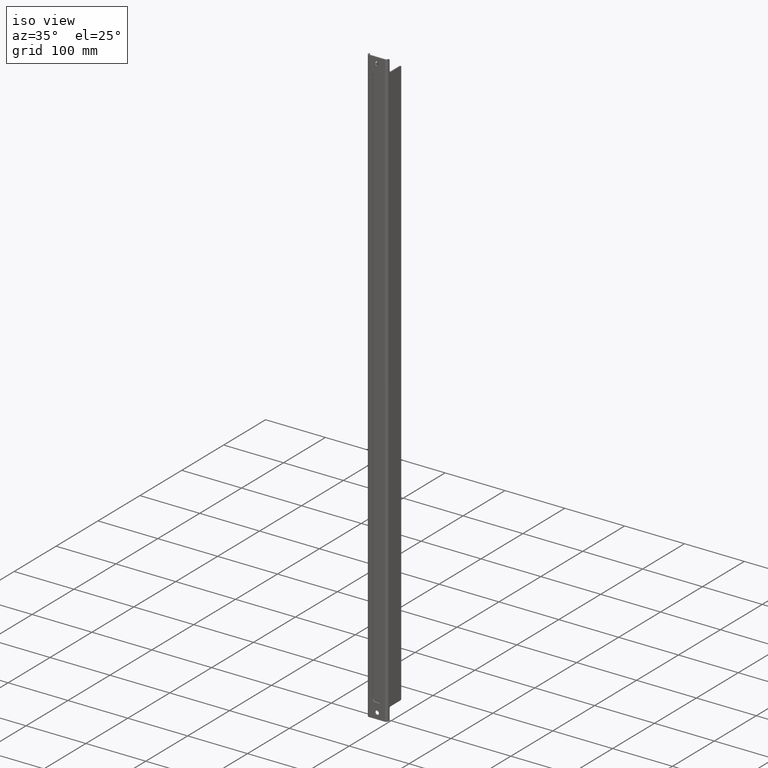
[diagram: clean part render]
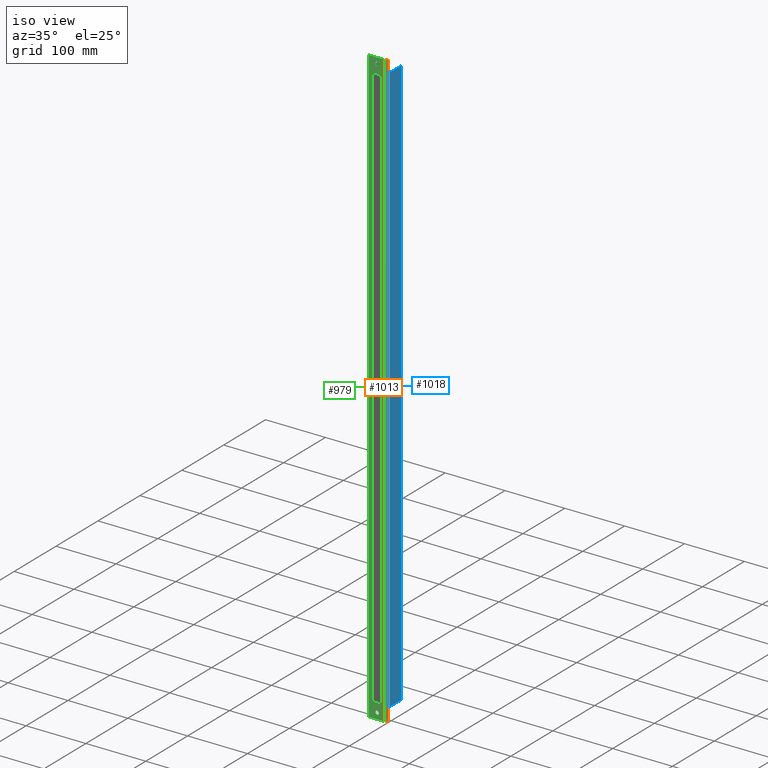
[diagram: same view with three faces highlighted in distinct colors, each labeled with its STEP entity id]
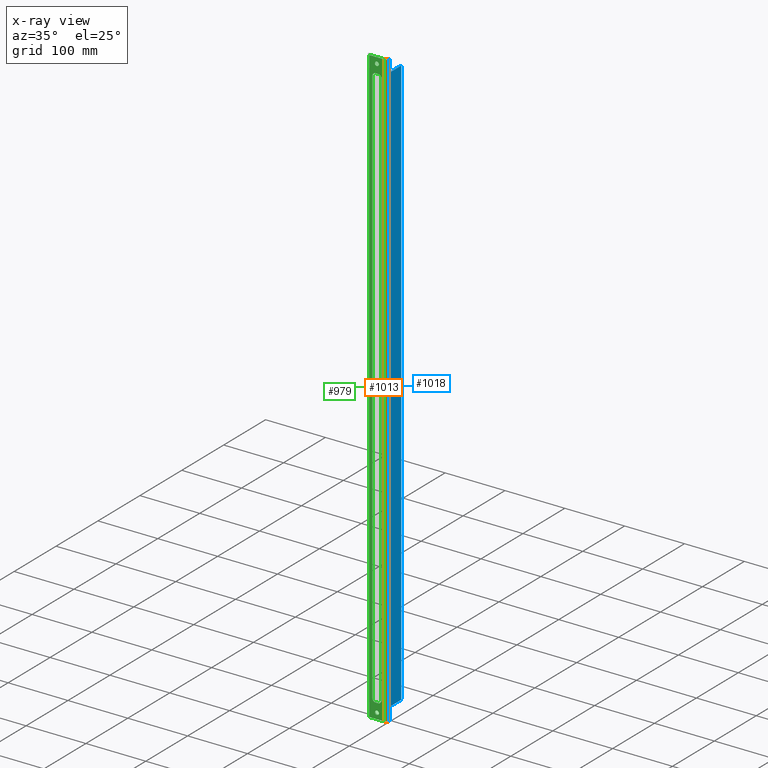
[diagram: x-ray of the same camera — body ghosted, the three highlighted faces saturated]
A machine part, iso view with three faces highlighted in distinct colors.
The next image is the same camera in x-ray (body ghosted, the three faces saturated) — at least one of them is partly hidden behind the body in this view.
Their STEP definitions:

[orange] entity #1013 — the highlighted cylindrical surface (edge-blend (fillet) strip) has radius 4 mm, axis along (0, 0, -1).
#33=LINE('',#1535,#121);
#90=LINE('',#1720,#178);
#121=VECTOR('',#1213,1000.);
#178=VECTOR('',#1410,1000.);
#215=CYLINDRICAL_SURFACE('',#1131,3.99999999999999);
#428=ORIENTED_EDGE('',*,*,#630,.T.);
#429=ORIENTED_EDGE('',*,*,#539,.T.);
#430=ORIENTED_EDGE('',*,*,#631,.F.);
#431=ORIENTED_EDGE('',*,*,#632,.F.);
#539=EDGE_CURVE('',#684,#682,#33,.T.);
#630=EDGE_CURVE('',#740,#684,#800,.T.);
#631=EDGE_CURVE('',#741,#682,#801,.T.);
#632=EDGE_CURVE('',#740,#741,#90,.T.);
#682=VERTEX_POINT('',#1533);
#684=VERTEX_POINT('',#1536);
#740=VERTEX_POINT('',#1717);
#741=VERTEX_POINT('',#1719);
#800=CIRCLE('',#1132,3.99999999999999);
#801=CIRCLE('',#1133,3.99999999999999);
#859=EDGE_LOOP('',(#428,#429,#430,#431));
#927=FACE_BOUND('',#859,.T.);
#1013=ADVANCED_FACE('',(#927),#215,.T.);
#1131=AXIS2_PLACEMENT_3D('',#1715,#1404,#1405);
#1132=AXIS2_PLACEMENT_3D('',#1716,#1406,#1407);
#1133=AXIS2_PLACEMENT_3D('',#1718,#1408,#1409);
#1213=DIRECTION('',(-3.43749899352818E-17,1.66533453693773E-16,-1.));
#1404=DIRECTION('',(8.93686180177302E-17,1.66533453693773E-16,-1.));
#1405=DIRECTION('',(4.06163832661068E-16,1.,1.66533453693773E-16));
#1406=DIRECTION('',(8.93686180177302E-17,1.66533453693773E-16,-1.));
#1407=DIRECTION('',(4.06163832661068E-16,1.,1.66533453693773E-16));
#1408=DIRECTION('',(8.93686180177302E-17,1.66533453693773E-16,-1.));
#1409=DIRECTION('',(4.06163832661068E-16,1.,1.66533453693773E-16));
#1410=DIRECTION('',(8.93686180177302E-17,1.31838984174237E-16,-1.));
#1533=CARTESIAN_POINT('',(13.0000000000001,-34.0130367319018,-500.));
#1535=CARTESIAN_POINT('',(13.0000000000001,-34.0130367319026,375.));
#1536=CARTESIAN_POINT('',(13.,-34.0130367319026,500.));
#1715=CARTESIAN_POINT('',(13.0000000000001,-30.0130367319025,-375.));
#1716=CARTESIAN_POINT('',(13.,-30.0130367319026,500.));
#1717=CARTESIAN_POINT('',(17.,-30.0130367319026,500.));
#1718=CARTESIAN_POINT('',(13.0000000000001,-30.0130367319018,-500.));
#1719=CARTESIAN_POINT('',(17.0000000000001,-30.0130367319022,-500.));
#1720=CARTESIAN_POINT('',(17.,-30.0130367319026,-1.92994200509913E-15));

[blue] entity #1018 — the highlighted planar face has unit normal (1, -0, 0).
#90=LINE('',#1720,#178);
#95=LINE('',#1734,#183);
#96=LINE('',#1738,#184);
#97=LINE('',#1742,#185);
#98=LINE('',#1746,#186);
#99=LINE('',#1750,#187);
#178=VECTOR('',#1410,1000.);
#183=VECTOR('',#1429,1000.);
#184=VECTOR('',#1432,1000.);
#185=VECTOR('',#1435,1000.);
#186=VECTOR('',#1438,1000.);
#187=VECTOR('',#1441,1000.);
#456=ORIENTED_EDGE('',*,*,#632,.T.);
#457=ORIENTED_EDGE('',*,*,#635,.T.);
#458=ORIENTED_EDGE('',*,*,#639,.T.);
#459=ORIENTED_EDGE('',*,*,#640,.T.);
#460=ORIENTED_EDGE('',*,*,#641,.T.);
#461=ORIENTED_EDGE('',*,*,#642,.T.);
#462=ORIENTED_EDGE('',*,*,#643,.F.);
#463=ORIENTED_EDGE('',*,*,#644,.T.);
#464=ORIENTED_EDGE('',*,*,#645,.T.);
#465=ORIENTED_EDGE('',*,*,#646,.T.);
#466=ORIENTED_EDGE('',*,*,#647,.T.);
#467=ORIENTED_EDGE('',*,*,#637,.T.);
#632=EDGE_CURVE('',#740,#741,#90,.T.);
#635=EDGE_CURVE('',#741,#742,#802,.T.);
#637=EDGE_CURVE('',#743,#740,#803,.T.);
#639=EDGE_CURVE('',#742,#744,#95,.T.);
#640=EDGE_CURVE('',#744,#745,#804,.T.);
#641=EDGE_CURVE('',#745,#746,#96,.T.);
#642=EDGE_CURVE('',#746,#747,#805,.T.);
#643=EDGE_CURVE('',#748,#747,#97,.T.);
#644=EDGE_CURVE('',#748,#749,#806,.T.);
#645=EDGE_CURVE('',#749,#750,#98,.T.);
#646=EDGE_CURVE('',#750,#751,#807,.T.);
#647=EDGE_CURVE('',#751,#743,#99,.T.);
#740=VERTEX_POINT('',#1717);
#741=VERTEX_POINT('',#1719);
#742=VERTEX_POINT('',#1727);
#743=VERTEX_POINT('',#1731);
#744=VERTEX_POINT('',#1735);
#745=VERTEX_POINT('',#1737);
#746=VERTEX_POINT('',#1739);
#747=VERTEX_POINT('',#1741);
#748=VERTEX_POINT('',#1743);
#749=VERTEX_POINT('',#1745);
#750=VERTEX_POINT('',#1747);
#751=VERTEX_POINT('',#1749);
#802=CIRCLE('',#1137,2.);
#803=CIRCLE('',#1139,2.);
#804=CIRCLE('',#1141,2.);
#805=CIRCLE('',#1142,2.);
#806=CIRCLE('',#1143,2.);
#807=CIRCLE('',#1144,2.);
#864=EDGE_LOOP('',(#456,#457,#458,#459,#460,#461,#462,#463,#464,#465,#466,
#467));
#932=FACE_BOUND('',#864,.T.);
#967=PLANE('',#1140);
#1018=ADVANCED_FACE('',(#932),#967,.T.);
#1137=AXIS2_PLACEMENT_3D('',#1726,#1419,#1420);
#1139=AXIS2_PLACEMENT_3D('',#1730,#1424,#1425);
#1140=AXIS2_PLACEMENT_3D('',#1733,#1427,#1428);
#1141=AXIS2_PLACEMENT_3D('',#1736,#1430,#1431);
#1142=AXIS2_PLACEMENT_3D('',#1740,#1433,#1434);
#1143=AXIS2_PLACEMENT_3D('',#1744,#1436,#1437);
#1144=AXIS2_PLACEMENT_3D('',#1748,#1439,#1440);
#1410=DIRECTION('',(8.93686180177302E-17,1.31838984174237E-16,-1.));
#1419=DIRECTION('',(1.,-4.06163832661068E-16,8.93686180177302E-17));
#1420=DIRECTION('',(8.93686180177302E-17,1.66533453693773E-16,-1.));
#1424=DIRECTION('',(1.,-4.06163832661068E-16,8.93686180177302E-17));
#1425=DIRECTION('',(8.93686180177302E-17,1.66533453693773E-16,-1.));
#1427=DIRECTION('',(1.,-4.06163832661068E-16,8.93686180177302E-17));
#1428=DIRECTION('',(8.93686180177302E-17,1.66533453693773E-16,-1.));
#1429=DIRECTION('',(-8.93686180177302E-17,-1.66533453693773E-16,1.));
#1430=DIRECTION('',(-1.,4.06163832661068E-16,-8.93686180177302E-17));
#1431=DIRECTION('',(8.93686180177302E-17,1.66533453693773E-16,-1.));
#1432=DIRECTION('',(4.06163832661068E-16,1.,1.66533453693773E-16));
#1433=DIRECTION('',(1.,-4.06163832661068E-16,8.93686180177302E-17));
#1434=DIRECTION('',(8.93686180177302E-17,1.66533453693773E-16,-1.));
#1435=DIRECTION('',(8.93686180177302E-17,1.66533453693773E-16,-1.));
#1436=DIRECTION('',(1.,-4.06163832661068E-16,8.93686180177302E-17));
#1437=DIRECTION('',(8.93686180177302E-17,1.66533453693773E-16,-1.));
#1438=DIRECTION('',(-4.06163832661068E-16,-1.,-1.66533453693773E-16));
#1439=DIRECTION('',(-1.,4.06163832661068E-16,-8.93686180177302E-17));
#1440=DIRECTION('',(8.93686180177302E-17,1.66533453693773E-16,-1.));
#1441=DIRECTION('',(-8.93686180177302E-17,-4.2624633981144E-17,1.));
#1717=CARTESIAN_POINT('',(17.,-30.0130367319026,500.));
#1719=CARTESIAN_POINT('',(17.0000000000001,-30.0130367319022,-500.));
#1720=CARTESIAN_POINT('',(17.,-30.0130367319026,-1.92994200509913E-15));
#1726=CARTESIAN_POINT('',(17.0000000000002,-30.0130367319018,-498.));
#1727=CARTESIAN_POINT('',(17.0000000000002,-28.0130367319018,-498.));
#1730=CARTESIAN_POINT('',(17.,-30.0130367319026,498.));
#1731=CARTESIAN_POINT('',(17.,-28.0130367319026,498.));
#1733=CARTESIAN_POINT('',(17.,-32.5130367319026,-2.25953946553472E-15));
#1734=CARTESIAN_POINT('',(17.0000000000001,-28.0130367319025,-250.));
#1735=CARTESIAN_POINT('',(17.0000000000001,-28.0130367319025,-481.));
#1736=CARTESIAN_POINT('',(17.0000000000002,-26.0130367319018,-481.));
#1737=CARTESIAN_POINT('',(17.0000000000002,-26.0130367319018,-479.));
#1738=CARTESIAN_POINT('',(17.0000000000002,-9.51303673190181,-479.));
#1739=CARTESIAN_POINT('',(17.,-2.01303673190192,-479.));
#1740=CARTESIAN_POINT('',(17.,-2.01303673190192,-477.));
#1741=CARTESIAN_POINT('',(16.9999999999999,-0.0130367319025937,-477.));
#1742=CARTESIAN_POINT('',(16.9999999999999,-0.0130367319026107,-375.));
#1743=CARTESIAN_POINT('',(16.9999999999998,-0.0130367319026905,477.));
#1744=CARTESIAN_POINT('',(16.9999999999998,-2.01303673190269,477.));
#1745=CARTESIAN_POINT('',(17.,-2.01303673190269,479.));
#1746=CARTESIAN_POINT('',(17.,-9.51303673190258,479.));
#1747=CARTESIAN_POINT('',(17.,-26.0130367319026,479.));
#1748=CARTESIAN_POINT('',(17.,-26.0130367319026,481.));
#1749=CARTESIAN_POINT('',(17.,-28.0130367319026,481.));
#1750=CARTESIAN_POINT('',(17.,-28.0130367319026,625.));

[green] entity #979 — the highlighted planar face has unit normal (0, 1, 0).
#28=LINE('',#1516,#116);
#29=LINE('',#1521,#117);
#30=LINE('',#1525,#118);
#31=LINE('',#1529,#119);
#32=LINE('',#1532,#120);
#33=LINE('',#1535,#121);
#34=LINE('',#1537,#122);
#35=LINE('',#1539,#123);
#116=VECTOR('',#1200,1000.);
#117=VECTOR('',#1203,1000.);
#118=VECTOR('',#1206,1000.);
#119=VECTOR('',#1209,1000.);
#120=VECTOR('',#1212,1000.);
#121=VECTOR('',#1213,1000.);
#122=VECTOR('',#1214,1000.);
#123=VECTOR('',#1215,1000.);
#243=ORIENTED_EDGE('',*,*,#529,.T.);
#244=ORIENTED_EDGE('',*,*,#530,.F.);
#245=ORIENTED_EDGE('',*,*,#531,.T.);
#246=ORIENTED_EDGE('',*,*,#532,.F.);
#247=ORIENTED_EDGE('',*,*,#533,.T.);
#248=ORIENTED_EDGE('',*,*,#534,.F.);
#249=ORIENTED_EDGE('',*,*,#535,.T.);
#250=ORIENTED_EDGE('',*,*,#536,.F.);
#251=ORIENTED_EDGE('',*,*,#537,.T.);
#252=ORIENTED_EDGE('',*,*,#538,.F.);
#253=ORIENTED_EDGE('',*,*,#539,.F.);
#254=ORIENTED_EDGE('',*,*,#540,.F.);
#255=ORIENTED_EDGE('',*,*,#541,.F.);
#256=ORIENTED_EDGE('',*,*,#542,.T.);
#529=EDGE_CURVE('',#673,#673,#761,.T.);
#530=EDGE_CURVE('',#674,#675,#28,.T.);
#531=EDGE_CURVE('',#674,#676,#762,.T.);
#532=EDGE_CURVE('',#677,#676,#29,.T.);
#533=EDGE_CURVE('',#677,#678,#763,.T.);
#534=EDGE_CURVE('',#679,#678,#30,.T.);
#535=EDGE_CURVE('',#679,#680,#764,.T.);
#536=EDGE_CURVE('',#681,#680,#31,.T.);
#537=EDGE_CURVE('',#681,#675,#765,.T.);
#538=EDGE_CURVE('',#682,#683,#32,.T.);
#539=EDGE_CURVE('',#684,#682,#33,.T.);
#540=EDGE_CURVE('',#685,#684,#34,.T.);
#541=EDGE_CURVE('',#683,#685,#35,.T.);
#542=EDGE_CURVE('',#686,#686,#766,.T.);
#673=VERTEX_POINT('',#1515);
#674=VERTEX_POINT('',#1517);
#675=VERTEX_POINT('',#1518);
#676=VERTEX_POINT('',#1520);
#677=VERTEX_POINT('',#1522);
#678=VERTEX_POINT('',#1524);
#679=VERTEX_POINT('',#1526);
#680=VERTEX_POINT('',#1528);
#681=VERTEX_POINT('',#1530);
#682=VERTEX_POINT('',#1533);
#683=VERTEX_POINT('',#1534);
#684=VERTEX_POINT('',#1536);
#685=VERTEX_POINT('',#1538);
#686=VERTEX_POINT('',#1541);
#761=CIRCLE('',#1059,3.29999999999997);
#762=CIRCLE('',#1060,5.);
#763=CIRCLE('',#1061,5.);
#764=CIRCLE('',#1062,5.);
#765=CIRCLE('',#1063,5.);
#766=CIRCLE('',#1064,3.29999999999997);
#817=EDGE_LOOP('',(#243));
#818=EDGE_LOOP('',(#244,#245,#246,#247,#248,#249,#250,#251));
#819=EDGE_LOOP('',(#252,#253,#254,#255));
#820=EDGE_LOOP('',(#256));
#885=FACE_BOUND('',#817,.T.);
#886=FACE_BOUND('',#818,.T.);
#887=FACE_BOUND('',#819,.T.);
#888=FACE_BOUND('',#820,.T.);
#948=PLANE('',#1058);
#979=ADVANCED_FACE('',(#885,#886,#887,#888),#948,.F.);
#1058=AXIS2_PLACEMENT_3D('',#1513,#1196,#1197);
#1059=AXIS2_PLACEMENT_3D('',#1514,#1198,#1199);
#1060=AXIS2_PLACEMENT_3D('',#1519,#1201,#1202);
#1061=AXIS2_PLACEMENT_3D('',#1523,#1204,#1205);
#1062=AXIS2_PLACEMENT_3D('',#1527,#1207,#1208);
#1063=AXIS2_PLACEMENT_3D('',#1531,#1210,#1211);
#1064=AXIS2_PLACEMENT_3D('',#1540,#1216,#1217);
#1196=DIRECTION('',(4.06163832661068E-16,1.,1.66533453693773E-16));
#1197=DIRECTION('',(-1.,4.06163832661068E-16,-8.93686180177302E-17));
#1198=DIRECTION('',(4.06163832661068E-16,1.,1.66533453693773E-16));
#1199=DIRECTION('',(-1.,4.06163832661068E-16,0.));
#1200=DIRECTION('',(-8.93686180177302E-17,-1.66533453693773E-16,1.));
#1201=DIRECTION('',(4.06163832661068E-16,1.,1.66533453693773E-16));
#1202=DIRECTION('',(-1.,4.06163832661068E-16,-8.93686180177302E-17));
#1203=DIRECTION('',(1.,-4.06163832661068E-16,8.93686180177302E-17));
#1204=DIRECTION('',(4.06163832661068E-16,1.,1.66533453693773E-16));
#1205=DIRECTION('',(-1.,4.06163832661068E-16,-8.93686180177302E-17));
#1206=DIRECTION('',(8.93686180177302E-17,1.66533453693773E-16,-1.));
#1207=DIRECTION('',(4.06163832661068E-16,1.,1.66533453693773E-16));
#1208=DIRECTION('',(-1.,4.06163832661068E-16,-8.93686180177302E-17));
#1209=DIRECTION('',(-1.,4.06163832661068E-16,-8.93686180177302E-17));
#1210=DIRECTION('',(4.06163832661068E-16,1.,1.66533453693773E-16));
#1211=DIRECTION('',(-1.,4.06163832661068E-16,-8.93686180177302E-17));
#1212=DIRECTION('',(-1.,4.06163832661068E-16,-8.93686180177302E-17));
#1213=DIRECTION('',(-3.43749899352818E-17,1.66533453693773E-16,-1.));
#1214=DIRECTION('',(1.,-4.06163832661068E-16,8.93686180177302E-17));
#1215=DIRECTION('',(3.32185076179637E-17,-1.66533453693773E-16,1.));
#1216=DIRECTION('',(4.06163832661068E-16,1.,1.66533453693773E-16));
#1217=DIRECTION('',(-1.,4.06163832661068E-16,0.));
#1513=CARTESIAN_POINT('',(-1.03104538151908E-14,-34.0130367319026,-3.71924713249427E-15));
#1514=CARTESIAN_POINT('',(-1.74730665500947E-14,-34.0130367319026,490.));
#1515=CARTESIAN_POINT('',(-3.29999999999999,-34.0130367319026,490.));
#1516=CARTESIAN_POINT('',(7.50000000000001,-34.0130367319025,-350.));
#1517=CARTESIAN_POINT('',(7.50000000000002,-34.0130367319025,-470.));
#1518=CARTESIAN_POINT('',(7.49999999999994,-34.0130367319026,470.));
#1519=CARTESIAN_POINT('',(2.50000000000007,-34.0130367319018,-470.));
#1520=CARTESIAN_POINT('',(2.50000000000007,-34.0130367319018,-475.));
#1521=CARTESIAN_POINT('',(-5.99999999999993,-34.0130367319018,-475.));
#1522=CARTESIAN_POINT('',(-2.49999999999997,-34.0130367319018,-475.));
#1523=CARTESIAN_POINT('',(-2.49999999999997,-34.0130367319018,-470.));
#1524=CARTESIAN_POINT('',(-7.50000000000001,-34.0130367319025,-470.));
#1525=CARTESIAN_POINT('',(-7.50000000000002,-34.0130367319025,-350.));
#1526=CARTESIAN_POINT('',(-7.50000000000009,-34.0130367319026,470.));
#1527=CARTESIAN_POINT('',(-2.50000000000008,-34.0130367319026,470.));
#1528=CARTESIAN_POINT('',(-2.50000000000008,-34.0130367319026,475.));
#1529=CARTESIAN_POINT('',(-6.00000000000005,-34.0130367319026,475.));
#1530=CARTESIAN_POINT('',(2.49999999999995,-34.0130367319026,475.));
#1531=CARTESIAN_POINT('',(2.49999999999995,-34.0130367319026,470.));
#1532=CARTESIAN_POINT('',(-7.49999999999997,-34.0130367319018,-500.));
#1533=CARTESIAN_POINT('',(13.0000000000001,-34.0130367319018,-500.));
#1534=CARTESIAN_POINT('',(-13.,-34.0130367319018,-500.));
#1535=CARTESIAN_POINT('',(13.0000000000001,-34.0130367319026,375.));
#1536=CARTESIAN_POINT('',(13.,-34.0130367319026,500.));
#1537=CARTESIAN_POINT('',(-7.49999999999999,-34.0130367319026,500.));
#1538=CARTESIAN_POINT('',(-13.,-34.0130367319026,500.));
#1539=CARTESIAN_POINT('',(-13.,-34.0130367319026,-3.28740653346074E-15));
#1540=CARTESIAN_POINT('',(1.34900564498444E-14,-34.0130367319018,-490.));
#1541=CARTESIAN_POINT('',(-3.29999999999996,-34.0130367319018,-490.));